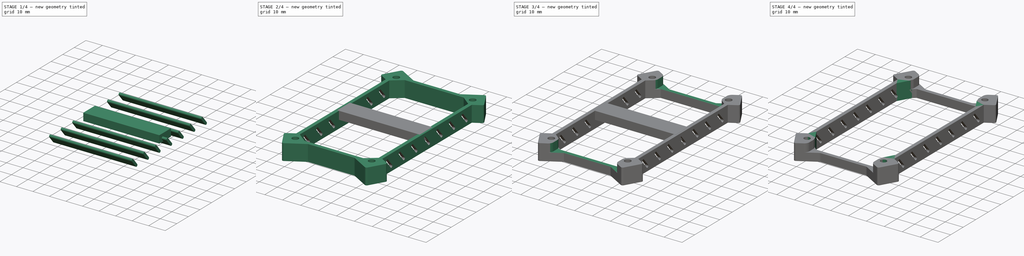
[diagram: build sequence overview — one tinted view per stage of 4, left to right]
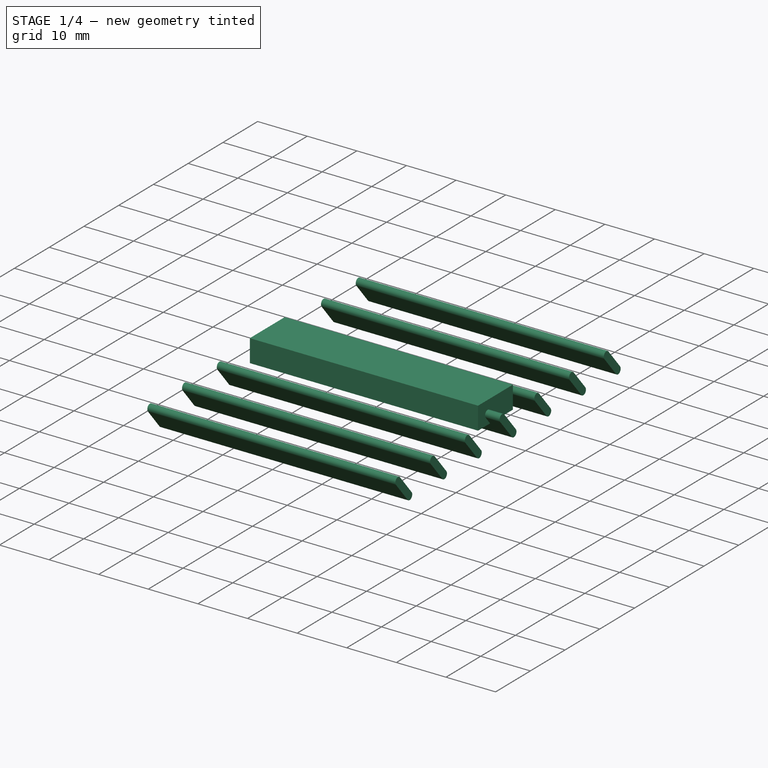
[diagram: stage 1 of 4 — iso view after this stage's code; geometry added in this stage tinted green]
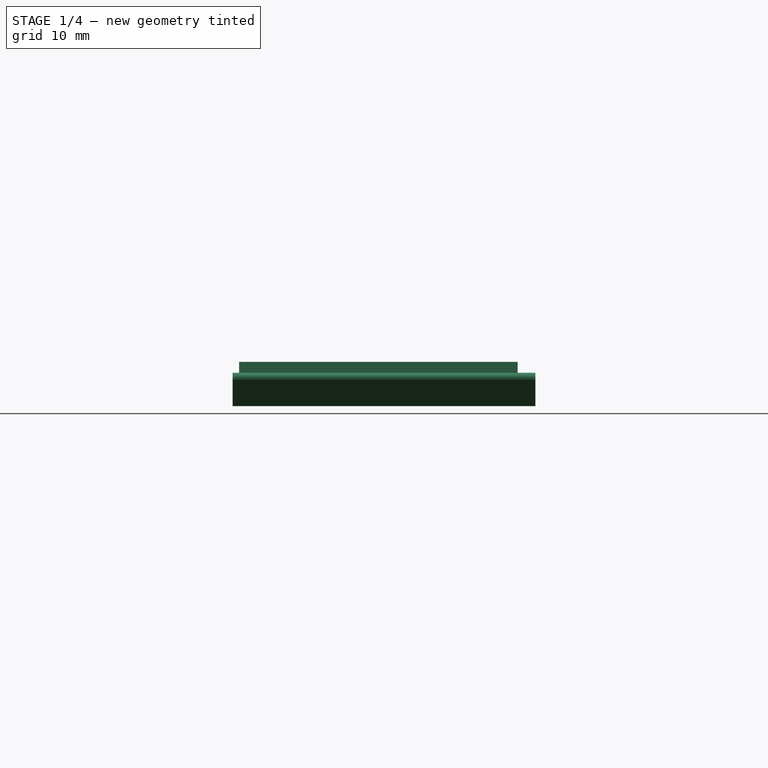
[diagram: stage 1 of 4 — front view after this stage's code; geometry added in this stage tinted green]
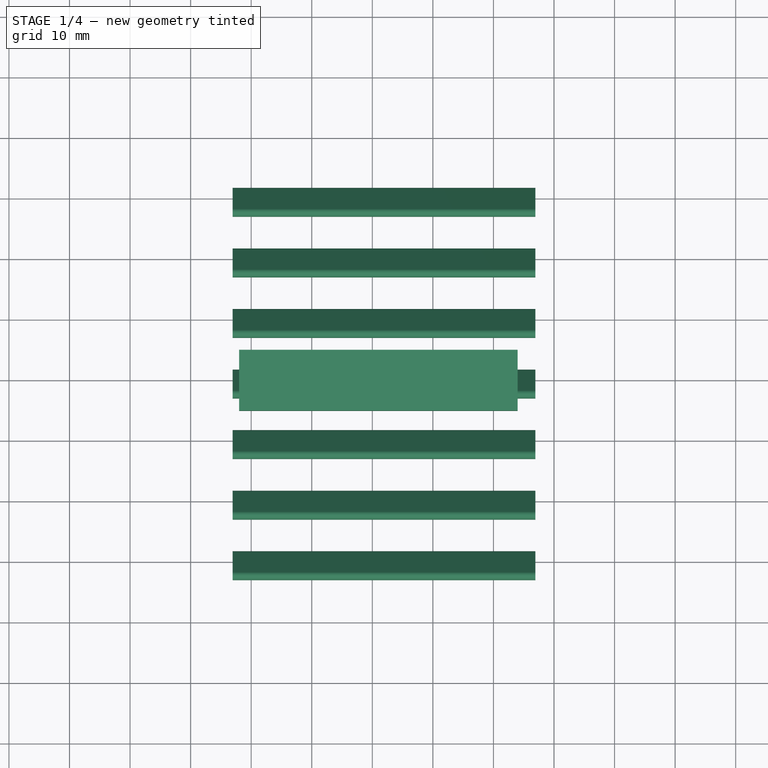
[diagram: stage 1 of 4 — top view after this stage's code; geometry added in this stage tinted green]
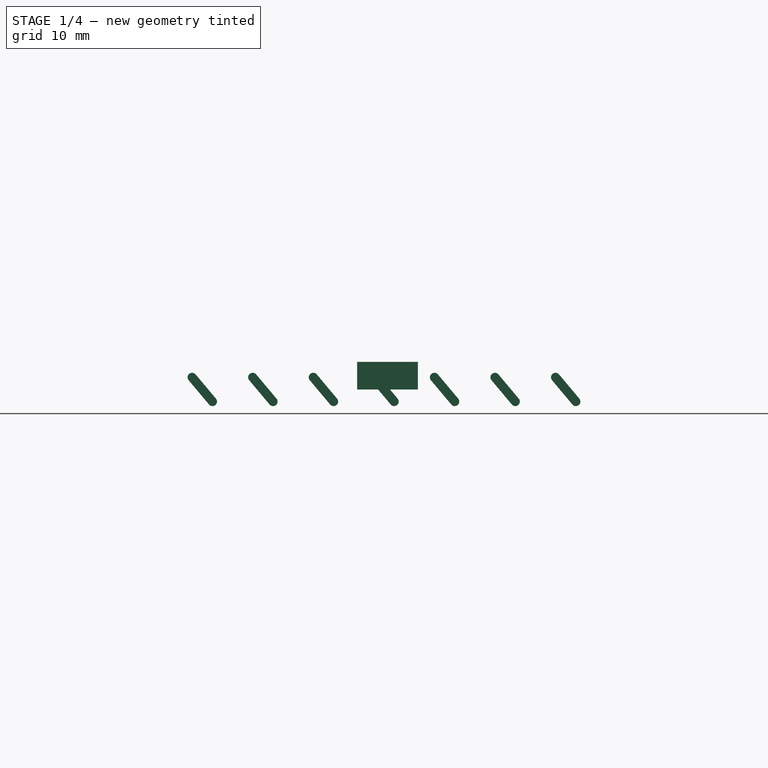
[diagram: stage 1 of 4 — right view after this stage's code; geometry added in this stage tinted green]
FCSTD DOCUMENT  (FreeCAD 0.15R4671 (Git))
Label: QAV250-PDB-Spacer
License: All rights reserved
LicenseURL: http://en.wikipedia.org/wiki/All_rights_reserved
objects: Sketcher::SketchObject×4, PartDesign::Pad×4, Part::Cut×3, Part::Fillet×2, PartDesign::Fillet×2, Part::FeaturePython×1
note: 20 computed .brp shape members not serialized (recipe doc carries the construction recipe); baked Part::Feature solids carry a one-line shape summary decoded from their .brp

FEATURE [Sketcher::SketchObject] Sketch003
  Placement = pos=(-23.0697,0,0) rot=(0.57735,-0.57735,-0.57735;2.0944rad)
  sketch-geometry (8):
    g0: LineSegment StartX=-1.12773 StartY=2.98209 StartZ=0 EndX=2.22867 EndY=6.98209 EndZ=0
    g1: LineSegment StartX=0.0213375 StartY=2.01791 StartZ=0 EndX=3.37774 EndY=6.01791 EndZ=0
    g2: Circle [constr] CenterX=2.8032 CenterY=6.5 CenterZ=0 NormalX=0 NormalY=0 NormalZ=1 Radius=0.75
    g3: Circle [constr] CenterX=-0.553196 CenterY=2.5 CenterZ=0 NormalX=0 NormalY=0 NormalZ=1 Radius=0.75
    g4: LineSegment [constr] StartX=-2.59231 StartY=9 StartZ=0 EndX=2.67137 EndY=9 EndZ=0
    g5: LineSegment [constr] StartX=-2.48646 StartY=0 StartZ=0 EndX=2.24882 EndY=0 EndZ=0
    g6: ArcOfCircle CenterX=2.8032 CenterY=6.5 CenterZ=0 NormalX=0 NormalY=0 NormalZ=1 Radius=0.75 StartAngle=5.58505 EndAngle=8.72665
    g7: ArcOfCircle CenterX=-0.553196 CenterY=2.5 CenterZ=0 NormalX=0 NormalY=0 NormalZ=1 Radius=0.75 StartAngle=2.44346 EndAngle=5.58505
  constraints (19):
    c: Radius(g2) = 0.75
    c: Tangent(g1,g2) = -1.5708
    c: Tangent(g0,g2) = 1.5708
    c: Radius(g3) = 0.75
    c: Tangent(g0,g3) = 1.5708
    c: Angle(g1,g-1) = 2.26893
    c: Horizontal(g4)
    c: DistanceY(g4,g2) = -2.5
    c: PointOnObject(g5,g-1)
    c: Horizontal(g5)
    c: DistanceY(g3,g5) = -2.5
    c: DistanceY(g5,g4) = 9
    c: Tangent(g6,g1) = -1.5708
    c: Tangent(g6,g2) = -1.5708
    c: Coincident(g6,g0)
    c: Coincident(g7,g3)
    c: Coincident(g0,g7)
    c: Coincident(g7,g1)
    c: Equal(g1,g0)
FEATURE [PartDesign::Pad] Pad001
  Length = 50
  Length2 = 100
  Placement = pos=(-23.0697,0,0) rot=(0.57735,-0.57735,-0.57735;2.0944rad)
  Reversed = true
  Sketch = -> Sketch003
  Type = 0
FEATURE [Part::FeaturePython] Array  # Draft array (typed FeaturePython)
  Angle = 360
  ArrayType = 0
  Axis = (0,0,1)
  Base = -> Pad001
  Center = (0,0,0)
  Fuse = false
  IntervalAxis = (0,0,0)
  IntervalX = (1,0,0)
  IntervalY = (0,10,0)
  IntervalZ = (0,0,0)
  NumberPolar = 0
  NumberX = 1
  NumberY = 7
  NumberZ = 1
  Placement = pos=(0,-29.5,0) rot=(0,0,1;0rad)
FEATURE [Sketcher::SketchObject] Sketch005
  Placement = pos=(1,0,0) rot=(0.57735,0.57735,0.57735;2.0944rad)
  sketch-geometry (4):
    g0: LineSegment StartX=-5.07194 StartY=4.49989 StartZ=0 EndX=4.96583 EndY=4.49989 EndZ=0
    g1: LineSegment StartX=4.96583 StartY=4.49989 StartZ=0 EndX=4.96583 EndY=9.04543 EndZ=0
    g2: LineSegment StartX=4.96583 StartY=9.04543 StartZ=0 EndX=-5.07194 EndY=9.04543 EndZ=0
    g3: LineSegment StartX=-5.07194 StartY=9.04543 StartZ=0 EndX=-5.07194 EndY=4.49989 EndZ=0
  constraints (8):
    c: Coincident(g0,g1)
    c: Coincident(g1,g2)
    c: Coincident(g2,g3)
    c: Coincident(g3,g0)
    c: Horizontal(g0)
    c: Horizontal(g2)
    c: Vertical(g1)
    c: Vertical(g3)
FEATURE [PartDesign::Pad] Pad003
  Length = 46
  Length2 = 100
  Midplane = true
  Placement = pos=(1,0,0) rot=(0.57735,0.57735,0.57735;2.0944rad)
  Sketch = -> Sketch005
  Type = 0
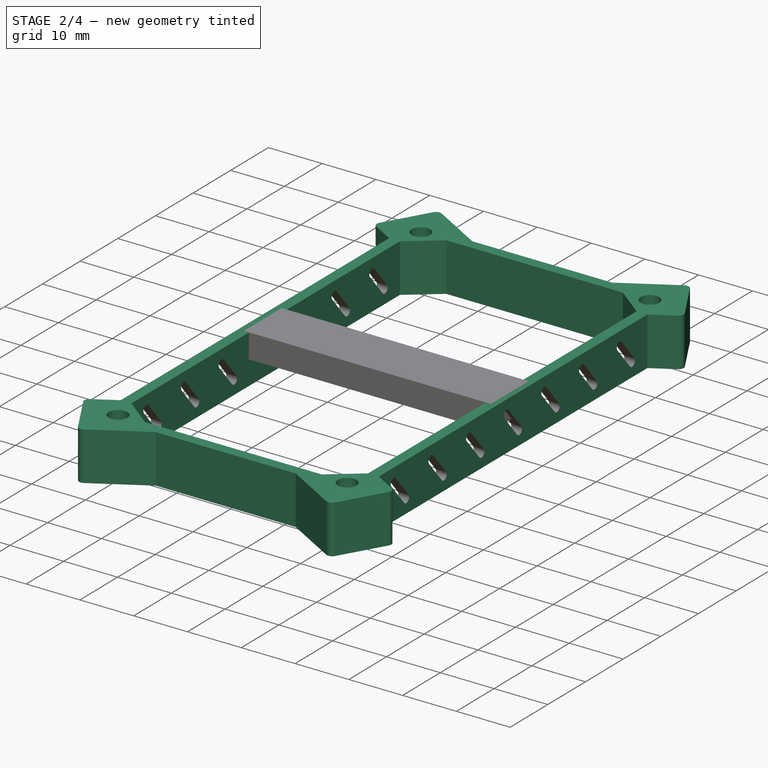
[diagram: stage 2 of 4 — iso view after this stage's code; geometry added in this stage tinted green]
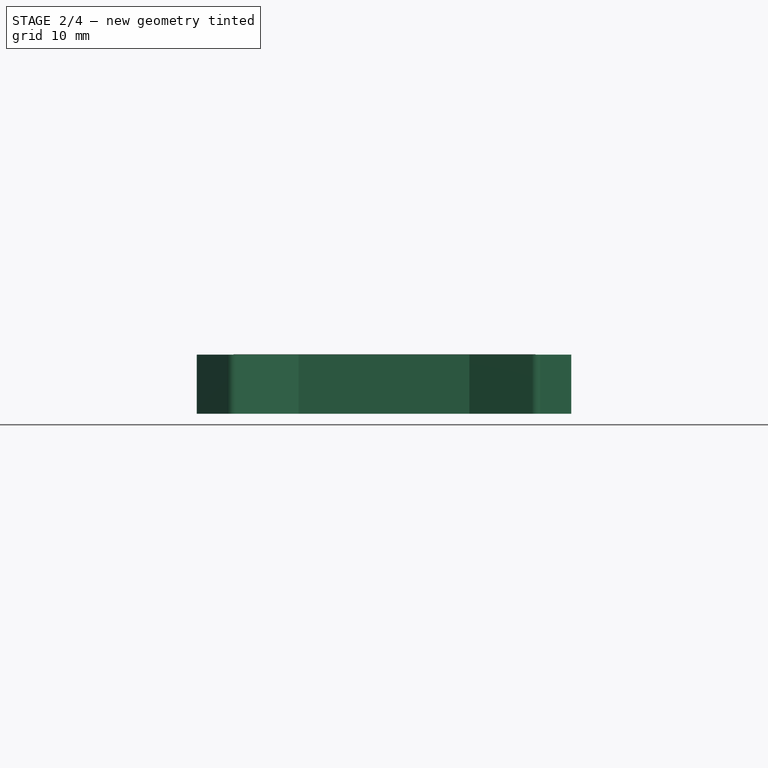
[diagram: stage 2 of 4 — front view after this stage's code; geometry added in this stage tinted green]
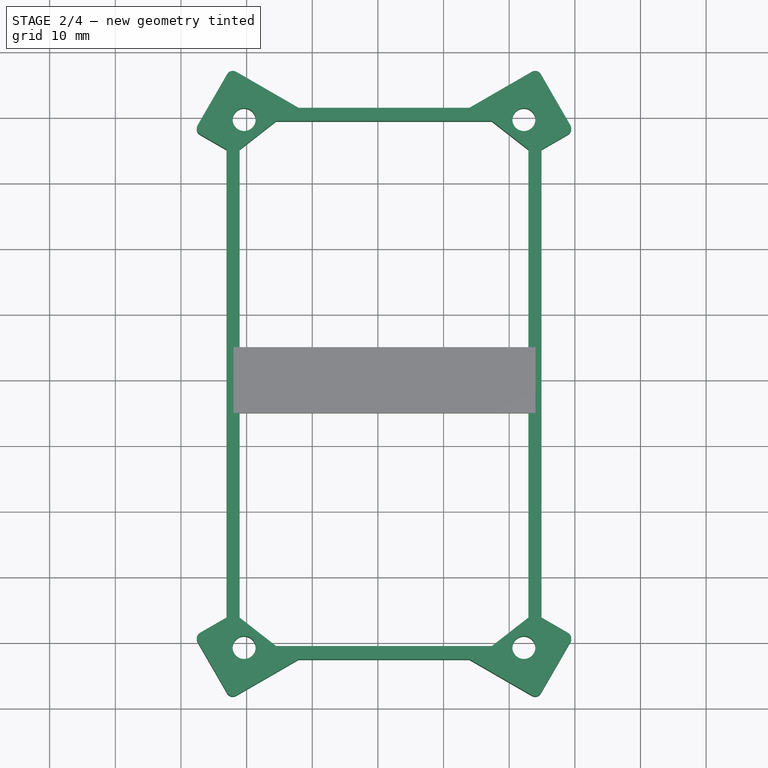
[diagram: stage 2 of 4 — top view after this stage's code; geometry added in this stage tinted green]
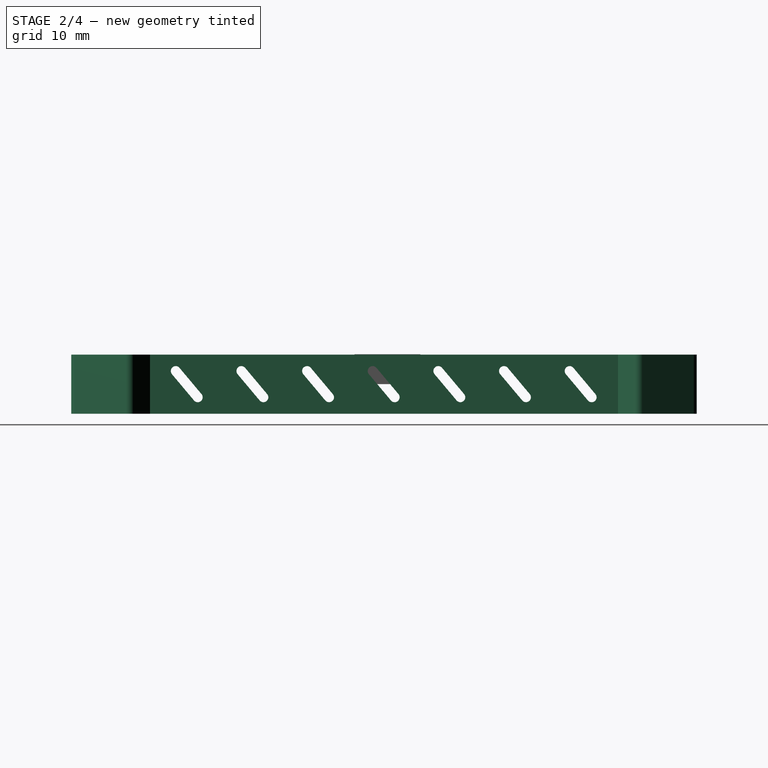
[diagram: stage 2 of 4 — right view after this stage's code; geometry added in this stage tinted green]
FEATURE [Sketcher::SketchObject] Sketch
  sketch-geometry (33):
    g0: LineSegment StartX=-12.0697 StartY=41.4218 StartZ=0 EndX=13.9303 EndY=41.4218 EndZ=0
    g1: LineSegment StartX=-22.462 StartY=47.4218 StartZ=0 EndX=-27.962 EndY=37.8955 EndZ=0
    g2: LineSegment StartX=-27.962 StartY=37.8955 StartZ=0 EndX=-23.0697 EndY=35.0709 EndZ=0
    g3: LineSegment StartX=-23.0697 StartY=35.0709 StartZ=0 EndX=-23.0697 EndY=-36.2273 EndZ=0
    g4: LineSegment StartX=-27.962 StartY=-39.0519 StartZ=0 EndX=-22.462 EndY=-48.5782 EndZ=0
    g5: LineSegment StartX=-22.462 StartY=-48.5782 StartZ=0 EndX=-12.0697 EndY=-42.5782 EndZ=0
    g6: LineSegment StartX=-12.0697 StartY=-42.5782 StartZ=0 EndX=13.9303 EndY=-42.5782 EndZ=0
    g7: LineSegment StartX=13.9303 StartY=-42.5782 StartZ=0 EndX=24.3226 EndY=-48.5782 EndZ=0
    g8: LineSegment StartX=24.3226 StartY=-48.5782 StartZ=0 EndX=29.8226 EndY=-39.0519 EndZ=0
    g9: LineSegment StartX=29.8226 StartY=-39.0519 StartZ=0 EndX=24.9303 EndY=-36.2273 EndZ=0
    g10: LineSegment StartX=24.9303 StartY=-36.2273 StartZ=0 EndX=24.9303 EndY=35.0709 EndZ=0
    g11: LineSegment StartX=24.9303 StartY=35.0709 StartZ=0 EndX=29.8226 EndY=37.8955 EndZ=0
    g12: LineSegment StartX=29.8226 StartY=37.8955 StartZ=0 EndX=24.3226 EndY=47.4218 EndZ=0
    g13: LineSegment StartX=24.3226 StartY=47.4218 StartZ=0 EndX=13.9303 EndY=41.4218 EndZ=0
    g14: LineSegment StartX=-22.462 StartY=47.4218 StartZ=0 EndX=-12.0697 EndY=41.4218 EndZ=0
    g15: LineSegment StartX=-23.0697 StartY=-36.2273 StartZ=0 EndX=-27.962 EndY=-39.0519 EndZ=0
    g16: Circle CenterX=-20.3757 CenterY=-40.7919 CenterZ=0 NormalX=0 NormalY=0 NormalZ=1 Radius=1.75
    g17: Circle CenterX=22.2363 CenterY=-40.7919 CenterZ=0 NormalX=0 NormalY=0 NormalZ=1 Radius=1.75
    g18: Circle CenterX=22.2363 CenterY=39.6355 CenterZ=0 NormalX=0 NormalY=0 NormalZ=1 Radius=1.75
    g19: Circle CenterX=-20.3757 CenterY=39.6355 CenterZ=0 NormalX=0 NormalY=0 NormalZ=1 Radius=1.75
    g20: LineSegment StartX=22.9303 StartY=35.0709 StartZ=0 EndX=22.9303 EndY=-36.2273 EndZ=0
    g21: LineSegment StartX=-21.0697 StartY=-36.2273 StartZ=0 EndX=-21.0697 EndY=35.0709 EndZ=0
    g22: Circle [constr] CenterX=-20.3757 CenterY=-40.7919 CenterZ=0 NormalX=0 NormalY=0 NormalZ=1 Radius=5.7
    g23: Circle [constr] CenterX=22.2363 CenterY=-40.7919 CenterZ=0 NormalX=0 NormalY=0 NormalZ=1 Radius=5.7
    g24: Circle [constr] CenterX=-20.3757 CenterY=39.6355 CenterZ=0 NormalX=0 NormalY=0 NormalZ=1 Radius=5.7
    g25: Circle [constr] CenterX=22.2363 CenterY=39.6355 CenterZ=0 NormalX=0 NormalY=0 NormalZ=1 Radius=5.7
    g26: LineSegment StartX=-21.0697 StartY=35.0709 StartZ=0 EndX=-15.4935 EndY=39.4218 EndZ=0
    g27: LineSegment StartX=22.9303 StartY=35.0709 StartZ=0 EndX=17.3541 EndY=39.4218 EndZ=0
    g28: LineSegment StartX=-15.4935 StartY=39.4218 StartZ=0 EndX=17.3541 EndY=39.4218 EndZ=0
    g29: LineSegment StartX=-21.0697 StartY=-36.2273 StartZ=0 EndX=-15.4935 EndY=-40.5782 EndZ=0
    g30: LineSegment StartX=-15.4935 StartY=-40.5782 StartZ=0 EndX=17.3541 EndY=-40.5782 EndZ=0
    g31: LineSegment StartX=17.3541 StartY=-40.5782 StartZ=0 EndX=22.9303 EndY=-36.2273 EndZ=0
    g32: LineSegment [constr] StartX=-21.0697 StartY=35.0709 StartZ=0 EndX=22.9303 EndY=35.0709 EndZ=0
  constraints (103):
    c: Distance(g0) = 26
    c: Coincident(g1,g2)
    c: Coincident(g2,g3)
    c: Vertical(g3)
    c: Coincident(g4,g5)
    c: Coincident(g5,g6)
    c: Horizontal(g6)
    c: Coincident(g6,g7)
    c: Coincident(g7,g8)
    c: Coincident(g8,g9)
    c: Coincident(g9,g10)
    c: Coincident(g10,g11)
    c: Coincident(g11,g12)
    c: Coincident(g12,g13)
    c: Coincident(g13,g0)
    c: Coincident(g14,g1)
    c: Coincident(g14,g0)
    c: Distance(g14) = 12
    c: Distance(g13) = 12
    c: Angle(g0,g14) = 2.61799
    c: Angle(g13,g0) = 2.61799
    c: Angle(g1,g14) = 1.5708
    c: Angle(g13,g12) = 1.5708
    c: Distance(g1) = 11
    c: Distance(g12) = 11
    c: Angle(g2,g1) = 1.5708
    c: Angle(g12,g11) = 1.5708
    c: Vertical(g10)
    c: DistanceX(g3,g9) = 48
    c: DistanceY(g5,g0) = 84
    c: Angle(g6,g7) = 2.61799
    c: Angle(g5,g6) = 2.61799
    c: Equal(g11,g2)
    c: Coincident(g15,g3)
    c: Coincident(g15,g4)
    c: Angle(g5,g4) = 1.5708
    c: Angle(g8,g7) = 1.5708
    c: Angle(g4,g15) = 1.5708
    c: Angle(g9,g8) = 1.5708
    c: Distance(g8) = 11
    c: Distance(g4) = 11
    c: Equal(g15,g9)
    c: Distance(g5) = 12
    c: Distance(g7) = 12
    c: Radius(g17) = 1.75
    c: Radius(g18) = 1.75
    c: Radius(g19) = 1.75
    c: Vertical(g20)
    c: Vertical(g21)
    c: Tangent(g5,g22)
    c: Tangent(g22,g4)
    c: Tangent(g23,g7)
    c: Tangent(g23,g8)
    c: Radius(g24) = 5.7
    c: Tangent(g24,g1)
    c: Tangent(g24,g14)
    c: Tangent(g25,g12)
    c: Tangent(g25,g13)
    c: Radius(g16) = 1.75
    c: Coincident(g16,g22)
    c: Coincident(g17,g23)
    c: Coincident(g24,g19)
    c: Coincident(g18,g25)
    c: DistanceX(g21,g2) = -2
    c: DistanceX(g20,g10) = 2
    c: Coincident(g27,g20)
    c: Coincident(g28,g27)
    c: Horizontal(g28)
    c: Coincident(g28,g26)
    c: Coincident(g29,g30)
    c: Horizontal(g30)
    c: Coincident(g30,g31)
    c: Coincident(g31,g20)
    c: DistanceY(g5,g29) = 2
    c: Coincident(g21,g29)
    c: Equal(g29,g31)
    c: Equal(g31,g27)
    c: Equal(g27,g26)
    c: DistanceY(g26,g0) = 2
    c: DistanceY(g27,g0) = 2
    c: DistanceY(g-1,g27) = 39.4218
    c: DistanceX(g-1,g2) = -23.0697
    c: Coincident(g26,g21)
    c: Equal(g20,g21)
    c: Equal(g26,g27)
    c: Equal(g27,g31)
    c: Equal(g31,g29)
    c: Equal(g30,g28)
    c: Equal(g6,g0)
    c: Coincident(g32,g21)
    c: Coincident(g32,g20)
    c: Horizontal(g32)
    c: Equal(g21,g3)
    c: Equal(g3,g20)
    c: Equal(g20,g10)
    c: Equal(g26,g27)
    c: Equal(g27,g29)
    c: Equal(g29,g31)
    c: Equal(g30,g28)
    c: Equal(g0,g6)
    c: Equal(g24,g25)
    c: Equal(g25,g22)
    c: Equal(g22,g23)
FEATURE [PartDesign::Pad] Pad
  Length = 9
  Length2 = 100
  Sketch = -> Sketch
  Type = 0
FEATURE [Part::Fillet] Fillet
  Base = -> Pad
  Edges = 8 edges r=1: [Edge1,Edge8,Edge11,Edge20,Edge23,Edge32,Edge35,Edge44]
FEATURE [Part::Cut] Cut
  Base = -> Fillet
  Tool = -> Array
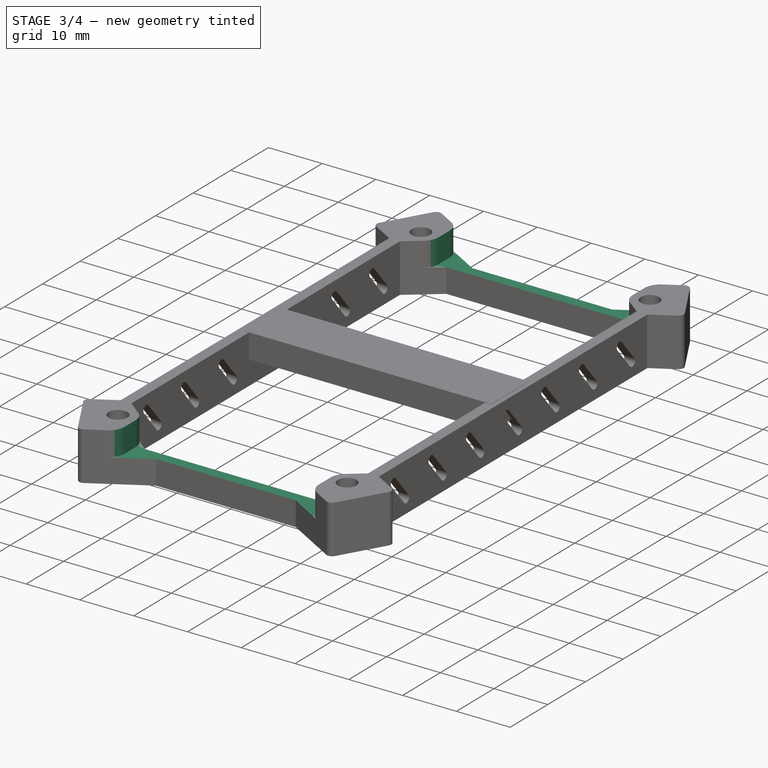
[diagram: stage 3 of 4 — iso view after this stage's code; geometry added in this stage tinted green]
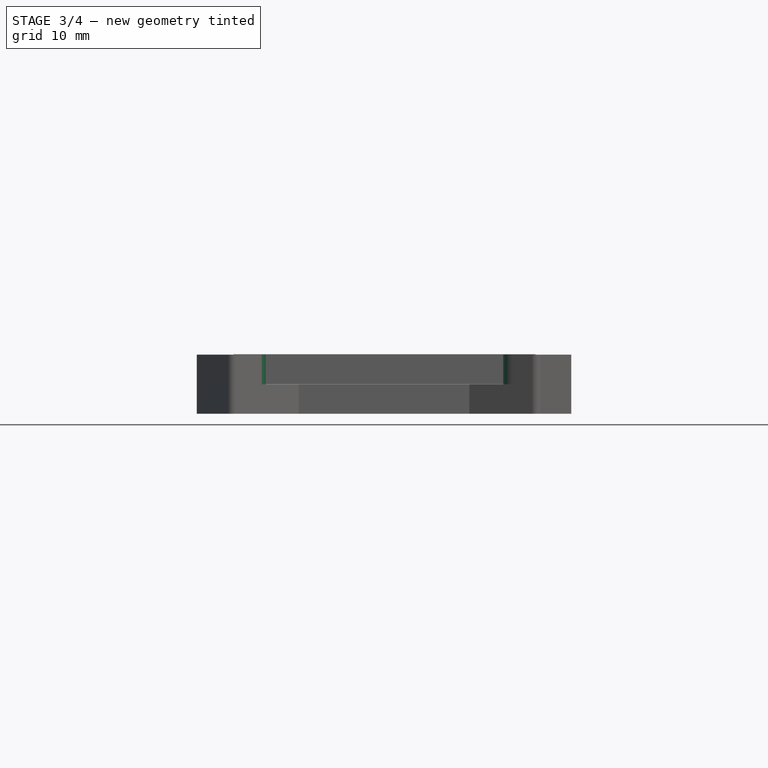
[diagram: stage 3 of 4 — front view after this stage's code; geometry added in this stage tinted green]
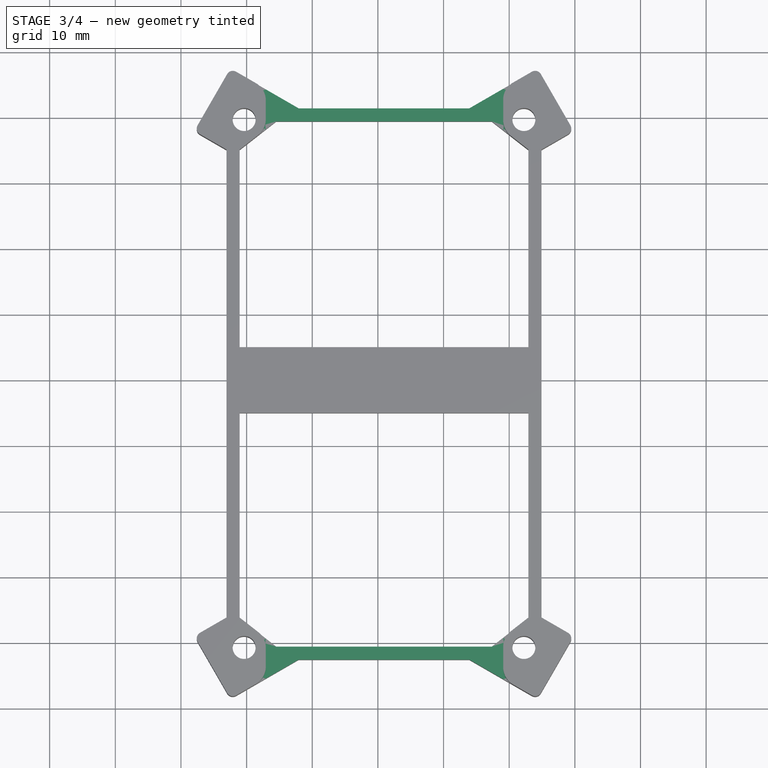
[diagram: stage 3 of 4 — top view after this stage's code; geometry added in this stage tinted green]
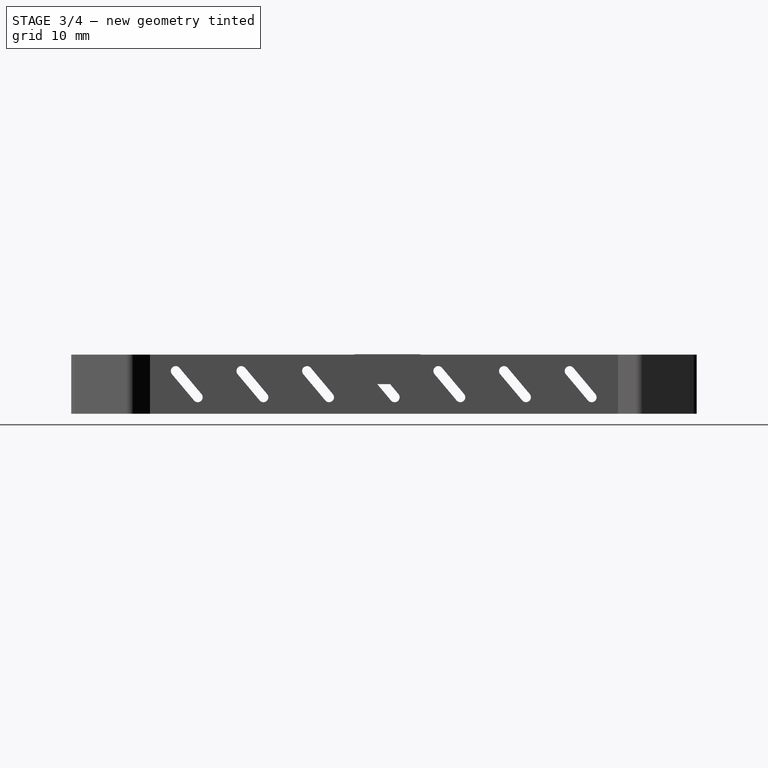
[diagram: stage 3 of 4 — right view after this stage's code; geometry added in this stage tinted green]
FEATURE [Sketcher::SketchObject] Sketch004
  Placement = pos=(1,-50,0) rot=(1,0,0;1.5708rad)
  sketch-geometry (4):
    g0: LineSegment StartX=-18.0754 StartY=9.22468 StartZ=0 EndX=18.0865 EndY=9.22468 EndZ=0
    g1: LineSegment StartX=18.0865 StartY=9.22468 StartZ=0 EndX=18.0865 EndY=4.4762 EndZ=0
    g2: LineSegment StartX=18.0865 StartY=4.4762 StartZ=0 EndX=-18.0754 EndY=4.4762 EndZ=0
    g3: LineSegment StartX=-18.0754 StartY=4.4762 StartZ=0 EndX=-18.0754 EndY=9.22468 EndZ=0
  constraints (8):
    c: Coincident(g0,g1)
    c: Coincident(g1,g2)
    c: Coincident(g2,g3)
    c: Coincident(g3,g0)
    c: Horizontal(g0)
    c: Horizontal(g2)
    c: Vertical(g1)
    c: Vertical(g3)
FEATURE [PartDesign::Pad] Pad002
  Length = 100
  Length2 = 100
  Placement = pos=(1,-50,0) rot=(1,0,0;1.5708rad)
  Reversed = true
  Sketch = -> Sketch004
  Type = 0
FEATURE [Part::Cut] Cut001
  Base = -> Cut
  Tool = -> Pad002
FEATURE [PartDesign::Fillet] Fillet002
  Base = -> Cut001 [Edge164,Edge152,Edge160,Edge170,Edge4,Edge50,Edge70,Edge203]
  Radius = 3
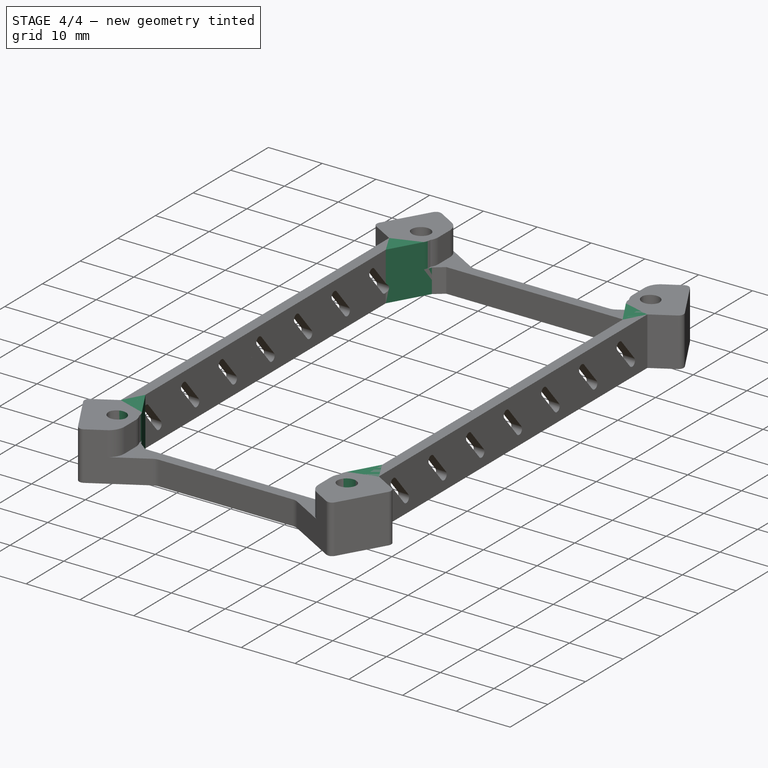
[diagram: stage 4 of 4 — iso view after this stage's code; geometry added in this stage tinted green]
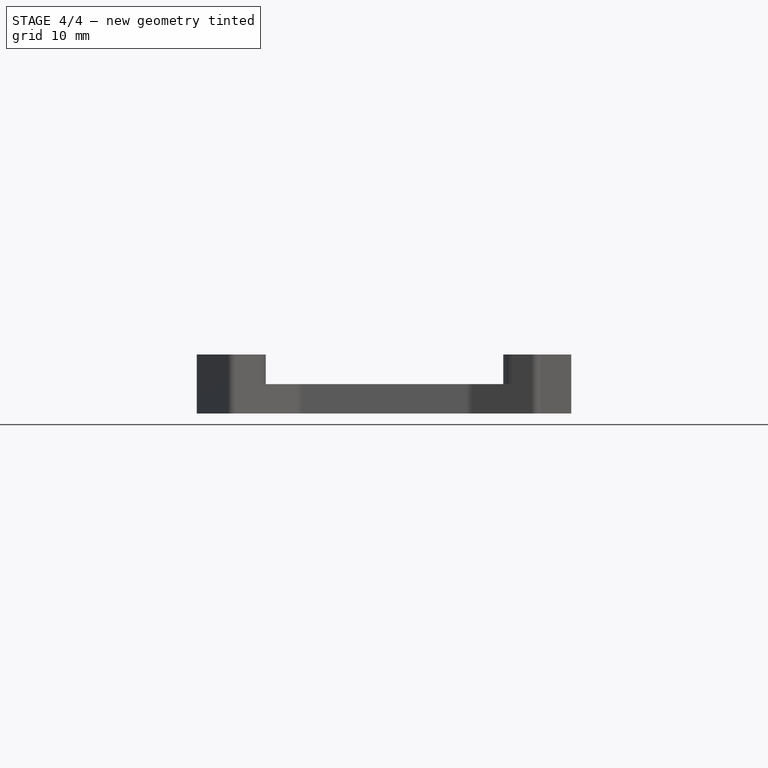
[diagram: stage 4 of 4 — front view after this stage's code; geometry added in this stage tinted green]
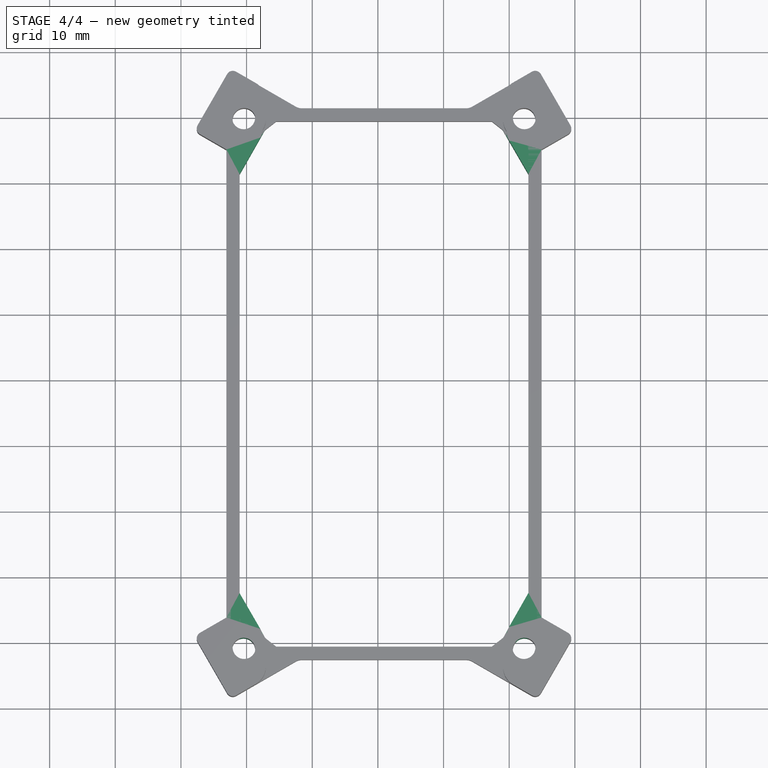
[diagram: stage 4 of 4 — top view after this stage's code; geometry added in this stage tinted green]
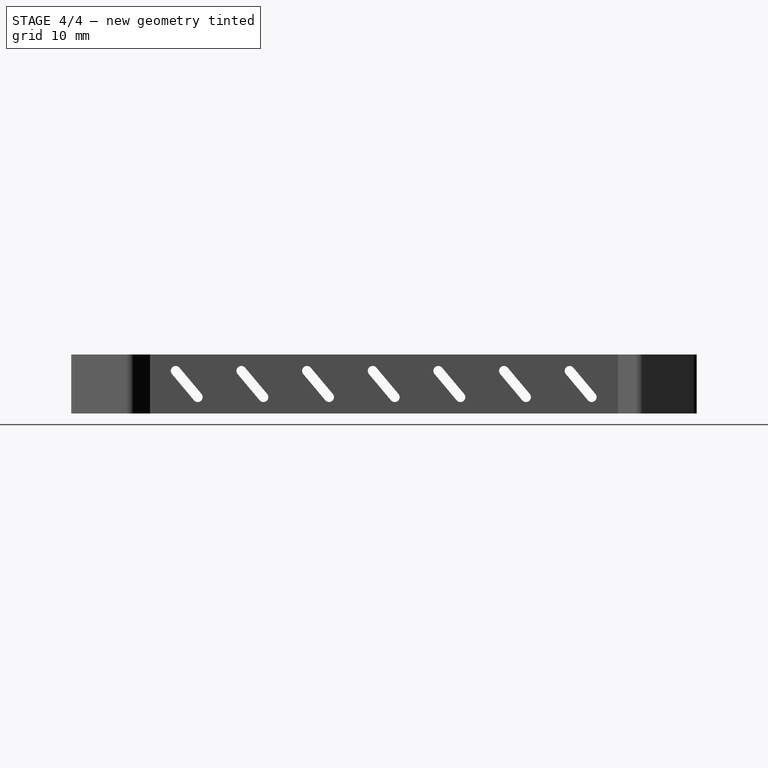
[diagram: stage 4 of 4 — right view after this stage's code; geometry added in this stage tinted green]
FEATURE [Part::Fillet] Fillet001
  Base = -> Cut001
  Edges = 8 edges r=3: [Edge4,Edge50,Edge70,Edge152,Edge160,Edge164,Edge176,Edge210]
FEATURE [PartDesign::Fillet] Fillet003
  Base = -> Fillet002 [Edge85,Edge221,Edge7,Edge80]
  Radius = 2
FEATURE [Part::Cut] Cut002
  Base = -> Fillet002
  Tool = -> Pad003
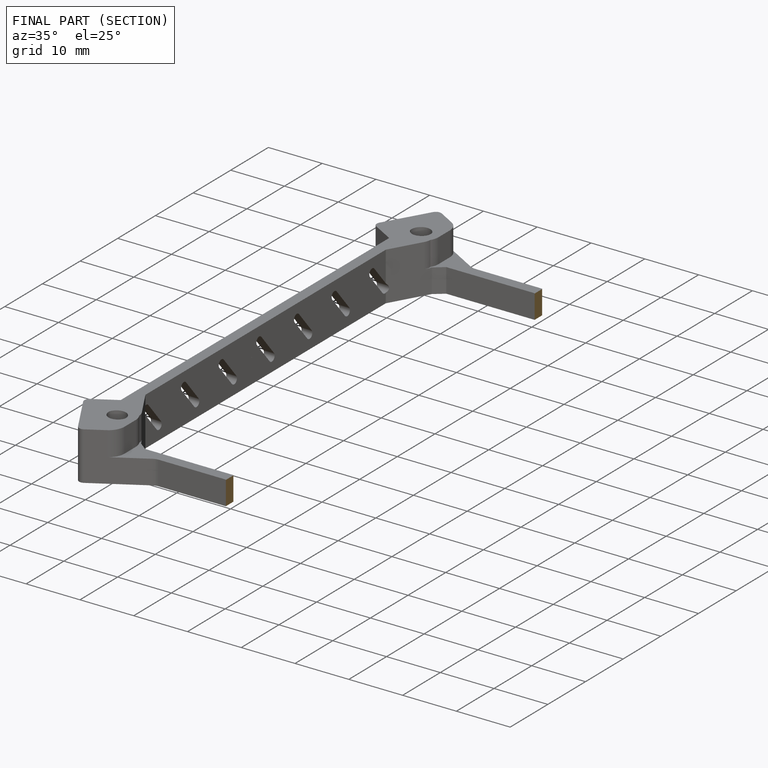
[diagram: finished part — half-section view (interior)]
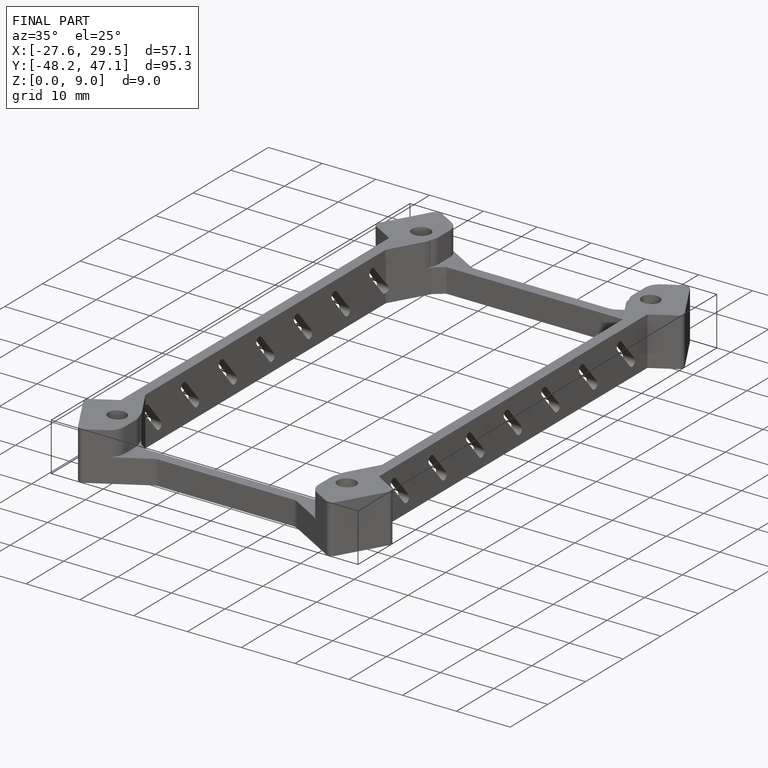
[diagram: finished part — iso view with bounding-box wireframe]
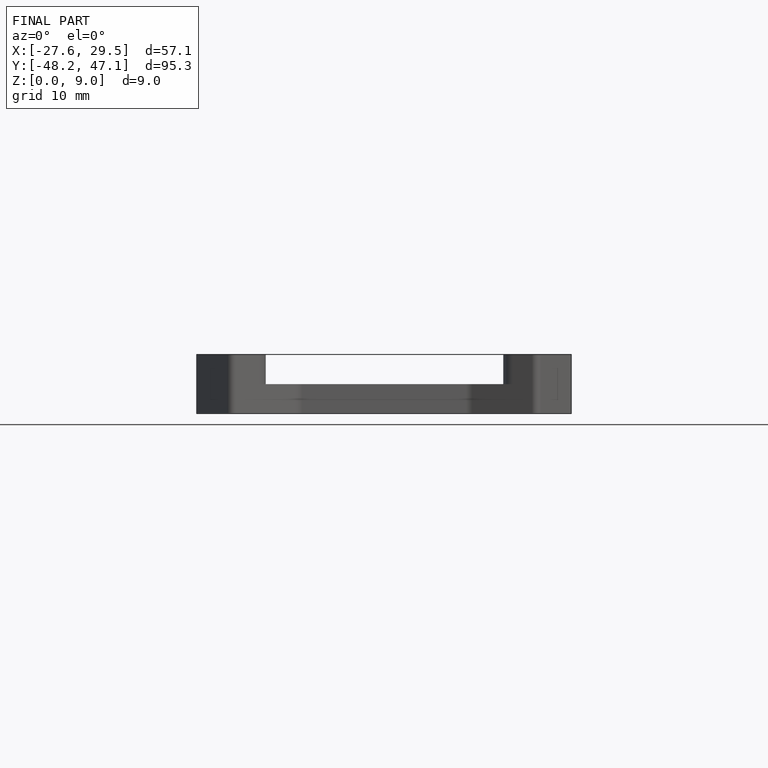
[diagram: finished part — front view with bounding-box wireframe]
